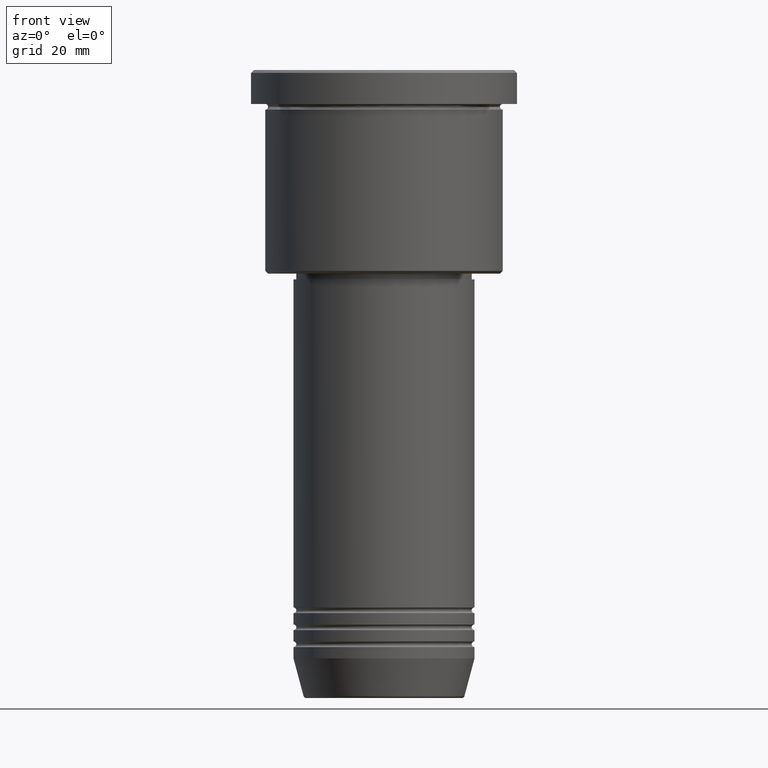
[diagram: clean part render]
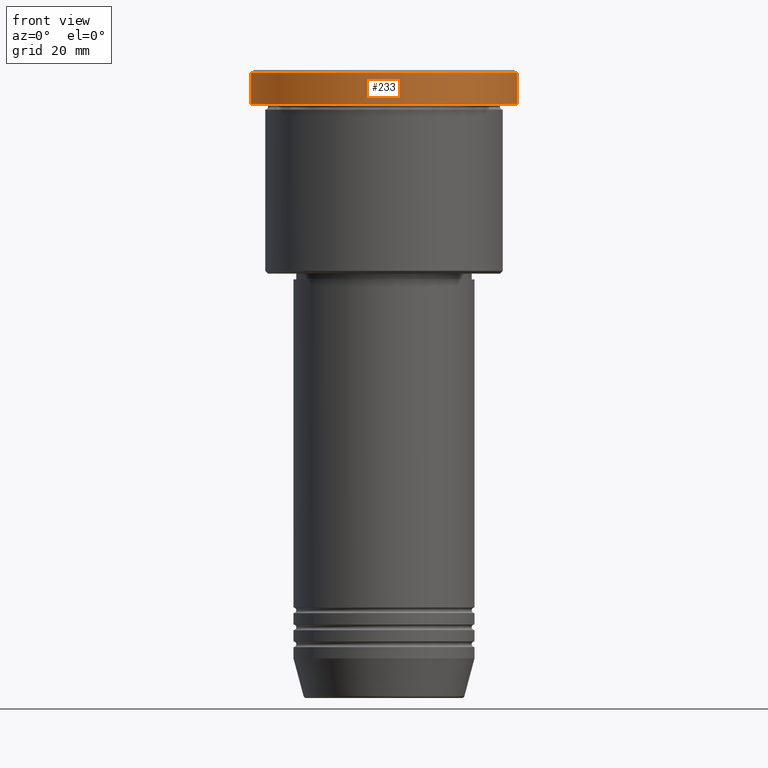
[diagram: same view with one face highlighted and labeled with its STEP entity id]
A machine part, front view. The second image highlights one B-rep face of the part: STEP entity #233.
In plain terms, the highlighted cylindrical surface (partial cylindrical patch) has radius 23.5 mm, axis along (-0, -0, 1).
Its self-contained STEP definition (entity closure, byte-faithful):
#107 = EDGE_CURVE ( 'NONE', #864, #238, #990, .T. ) ;
#191 = DIRECTION ( 'NONE',  ( 1.000000000000000000, 0.000000000000000000, 0.000000000000000000 ) ) ;
#233 = ADVANCED_FACE ( 'NONE', ( #267 ), #1120, .T. ) ;
#238 = VERTEX_POINT ( 'NONE', #569 ) ;
#251 = ORIENTED_EDGE ( 'NONE', *, *, #791, .T. ) ;
#264 = EDGE_CURVE ( 'NONE', #346, #238, #507, .T. ) ;
#267 = FACE_OUTER_BOUND ( 'NONE', #953, .T. ) ;
#272 = CARTESIAN_POINT ( 'NONE',  ( 0.000000000000000000, 0.000000000000000000, -0.4999999999999865663 ) ) ;
#284 = DIRECTION ( 'NONE',  ( -0.000000000000000000, -0.000000000000000000, 1.000000000000000000 ) ) ;
#291 = CARTESIAN_POINT ( 'NONE',  ( 0.000000000000000000, 0.000000000000000000, 0.000000000000000000 ) ) ;
#343 = AXIS2_PLACEMENT_3D ( 'NONE', #633, #916, #937 ) ;
#346 = VERTEX_POINT ( 'NONE', #641 ) ;
#396 = EDGE_CURVE ( 'NONE', #864, #1160, #1132, .T. ) ;
#423 = CARTESIAN_POINT ( 'NONE',  ( 23.50000000000000000, 0.000000000000000000, -5.999999999999994671 ) ) ;
#431 = CARTESIAN_POINT ( 'NONE',  ( -23.50000000000000000, 2.877919977996280320E-15, -5.999999999999994671 ) ) ;
#446 = AXIS2_PLACEMENT_3D ( 'NONE', #272, #938, #1030 ) ;
#507 = CIRCLE ( 'NONE', #446, 23.50000000000000000 ) ;
#536 = DIRECTION ( 'NONE',  ( -0.000000000000000000, -0.000000000000000000, 1.000000000000000000 ) ) ;
#569 = CARTESIAN_POINT ( 'NONE',  ( -23.50000000000000000, 2.877919977996280320E-15, -0.4999999999999865663 ) ) ;
#577 = AXIS2_PLACEMENT_3D ( 'NONE', #291, #284, #191 ) ;
#579 = VECTOR ( 'NONE', #1123, 1000.000000000000000 ) ;
#594 = ORIENTED_EDGE ( 'NONE', *, *, #396, .T. ) ;
#633 = CARTESIAN_POINT ( 'NONE',  ( 0.000000000000000000, 0.000000000000000000, -5.999999999999994671 ) ) ;
#641 = CARTESIAN_POINT ( 'NONE',  ( 23.50000000000000000, 0.000000000000000000, -0.4999999999999865663 ) ) ;
#755 = ORIENTED_EDGE ( 'NONE', *, *, #264, .T. ) ;
#791 = EDGE_CURVE ( 'NONE', #1160, #346, #1026, .T. ) ;
#856 = CARTESIAN_POINT ( 'NONE',  ( 23.50000000000000000, 0.000000000000000000, 0.000000000000000000 ) ) ;
#864 = VERTEX_POINT ( 'NONE', #431 ) ;
#916 = DIRECTION ( 'NONE',  ( -0.000000000000000000, -0.000000000000000000, 1.000000000000000000 ) ) ;
#937 = DIRECTION ( 'NONE',  ( 1.000000000000000000, 0.000000000000000000, 0.000000000000000000 ) ) ;
#938 = DIRECTION ( 'NONE',  ( 0.000000000000000000, 0.000000000000000000, -1.000000000000000000 ) ) ;
#953 = EDGE_LOOP ( 'NONE', ( #1129, #594, #251, #755 ) ) ;
#990 = LINE ( 'NONE', #1174, #1015 ) ;
#1015 = VECTOR ( 'NONE', #536, 1000.000000000000000 ) ;
#1026 = LINE ( 'NONE', #856, #579 ) ;
#1030 = DIRECTION ( 'NONE',  ( 1.000000000000000000, 0.000000000000000000, 0.000000000000000000 ) ) ;
#1120 = CYLINDRICAL_SURFACE ( 'NONE', #577, 23.50000000000000000 ) ;
#1123 = DIRECTION ( 'NONE',  ( -0.000000000000000000, -0.000000000000000000, 1.000000000000000000 ) ) ;
#1129 = ORIENTED_EDGE ( 'NONE', *, *, #107, .F. ) ;
#1132 = CIRCLE ( 'NONE', #343, 23.50000000000000000 ) ;
#1160 = VERTEX_POINT ( 'NONE', #423 ) ;
#1174 = CARTESIAN_POINT ( 'NONE',  ( -23.50000000000000000, 2.877919977996280320E-15, 0.000000000000000000 ) ) ;